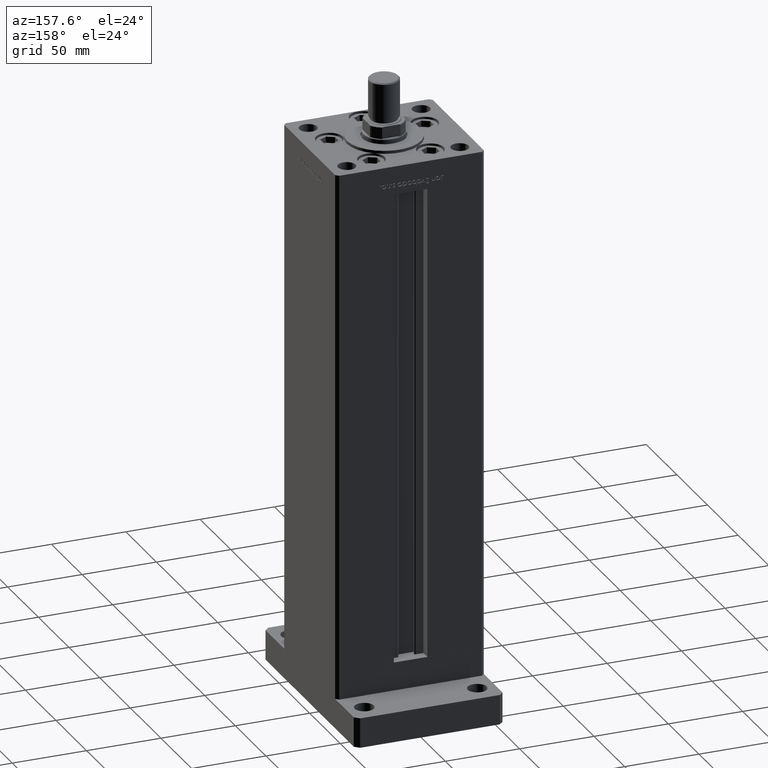
[diagram: clean part render]
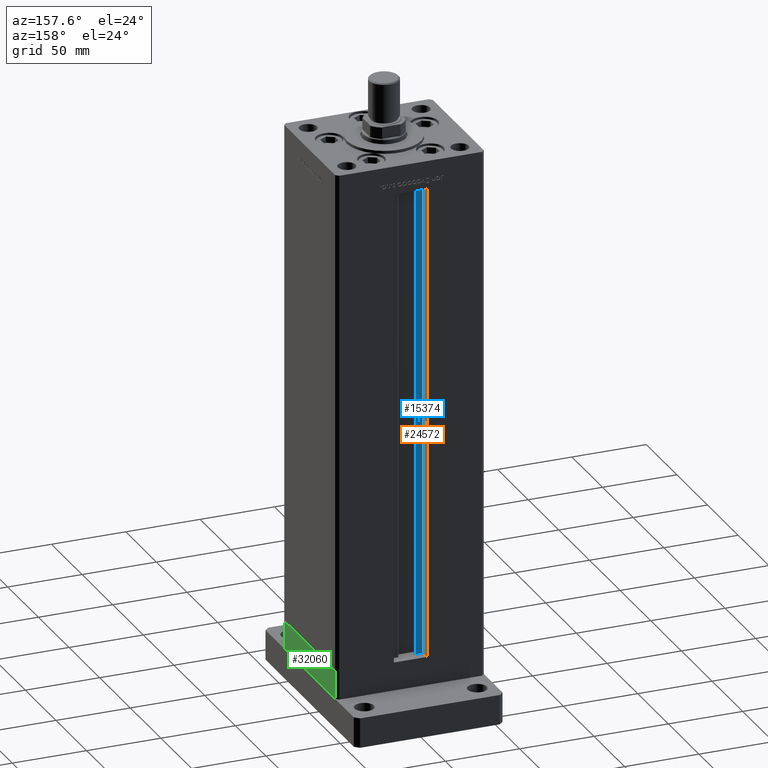
[diagram: same view with three faces highlighted in distinct colors, each labeled with its STEP entity id]
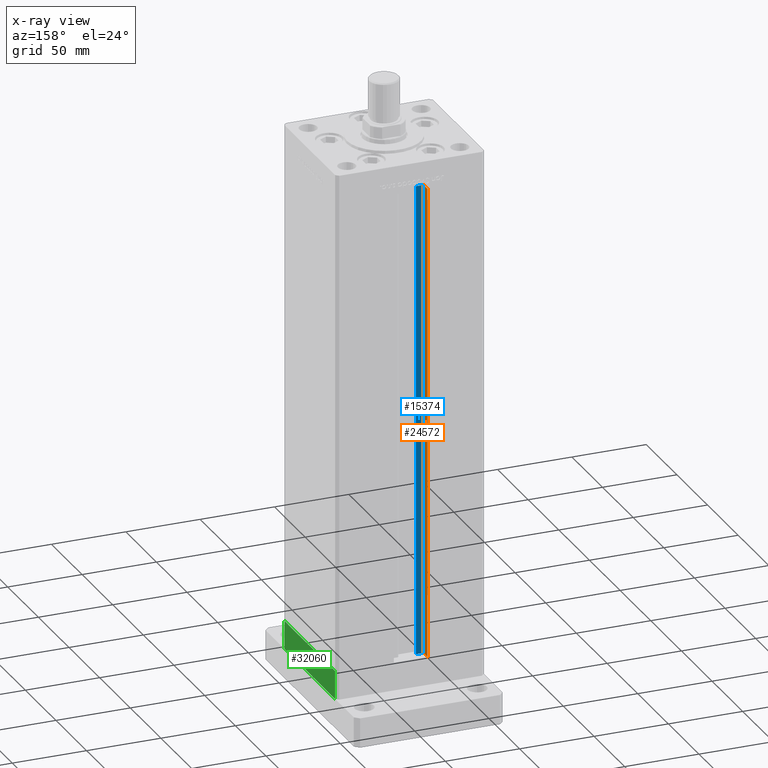
[diagram: x-ray of the same camera — body ghosted, the three highlighted faces saturated]
A machine part, auxiliary view with three faces highlighted in distinct colors.
The next image is the same camera in x-ray (body ghosted, the three faces saturated) — at least one of them is partly hidden behind the body in this view.
Their STEP definitions:

[orange] entity #24572 — the highlighted planar face has unit normal (-1, 0, 0).
#1047 = LINE ( 'NONE', #51153, #19085 ) ;
#1165 = VERTEX_POINT ( 'NONE', #39199 ) ;
#1430 = DIRECTION ( 'NONE',  ( 0.000000000000000000, 1.000000000000000000, 0.000000000000000000 ) ) ;
#2172 = EDGE_CURVE ( 'NONE', #21107, #40958, #1047, .T. ) ;
#2620 = DIRECTION ( 'NONE',  ( -1.000000000000000000, 0.000000000000000000, 0.000000000000000000 ) ) ;
#2978 = ORIENTED_EDGE ( 'NONE', *, *, #19882, .F. ) ;
#3798 = DIRECTION ( 'NONE',  ( -0.000000000000000000, -0.000000000000000000, 1.000000000000000000 ) ) ;
#7537 = VECTOR ( 'NONE', #3798, 1000.000000000000000 ) ;
#9757 = FACE_OUTER_BOUND ( 'NONE', #17775, .T. ) ;
#9919 = LINE ( 'NONE', #13196, #27832 ) ;
#11702 = CARTESIAN_POINT ( 'NONE',  ( -11.24999999999999822, 36.99999999999999289, 0.000000000000000000 ) ) ;
#13196 = CARTESIAN_POINT ( 'NONE',  ( -11.24999999999999822, 0.000000000000000000, 318.5000000000000000 ) ) ;
#15525 = LINE ( 'NONE', #11702, #42757 ) ;
#17775 = EDGE_LOOP ( 'NONE', ( #47777, #49898, #42741, #2978 ) ) ;
#19085 = VECTOR ( 'NONE', #38256, 1000.000000000000000 ) ;
#19300 = DIRECTION ( 'NONE',  ( 0.000000000000000000, 0.000000000000000000, 1.000000000000000000 ) ) ;
#19882 = EDGE_CURVE ( 'NONE', #43770, #1165, #9919, .T. ) ;
#21063 = EDGE_CURVE ( 'NONE', #40958, #43770, #15525, .T. ) ;
#21107 = VERTEX_POINT ( 'NONE', #40181 ) ;
#24572 = ADVANCED_FACE ( 'NONE', ( #9757 ), #44509, .F. ) ;
#27832 = VECTOR ( 'NONE', #1430, 1000.000000000000000 ) ;
#33996 = CARTESIAN_POINT ( 'NONE',  ( -11.24999999999999822, 36.99999999999999289, 318.5000000000000000 ) ) ;
#36692 = AXIS2_PLACEMENT_3D ( 'NONE', #39587, #2620, #19300 ) ;
#38256 = DIRECTION ( 'NONE',  ( -0.000000000000000000, -1.000000000000000000, -0.000000000000000000 ) ) ;
#39199 = CARTESIAN_POINT ( 'NONE',  ( -11.24999999999999822, 43.50000000000000000, 318.5000000000000000 ) ) ;
#39587 = CARTESIAN_POINT ( 'NONE',  ( -11.24999999999999822, 36.99999999999999289, 0.000000000000000000 ) ) ;
#40181 = CARTESIAN_POINT ( 'NONE',  ( -11.24999999999999822, 43.50000000000000000, 0.000000000000000000 ) ) ;
#40958 = VERTEX_POINT ( 'NONE', #43536 ) ;
#41833 = CARTESIAN_POINT ( 'NONE',  ( -11.24999999999999822, 43.50000000000000000, 0.000000000000000000 ) ) ;
#42098 = LINE ( 'NONE', #41833, #7537 ) ;
#42741 = ORIENTED_EDGE ( 'NONE', *, *, #45019, .T. ) ;
#42757 = VECTOR ( 'NONE', #53868, 1000.000000000000000 ) ;
#43536 = CARTESIAN_POINT ( 'NONE',  ( -11.24999999999999822, 36.99999999999999289, 0.000000000000000000 ) ) ;
#43770 = VERTEX_POINT ( 'NONE', #33996 ) ;
#44509 = PLANE ( 'NONE',  #36692 ) ;
#45019 = EDGE_CURVE ( 'NONE', #21107, #1165, #42098, .T. ) ;
#47777 = ORIENTED_EDGE ( 'NONE', *, *, #21063, .F. ) ;
#49898 = ORIENTED_EDGE ( 'NONE', *, *, #2172, .F. ) ;
#51153 = CARTESIAN_POINT ( 'NONE',  ( -11.24999999999999822, 36.99999999999999289, 0.000000000000000000 ) ) ;
#53868 = DIRECTION ( 'NONE',  ( -0.000000000000000000, -0.000000000000000000, 1.000000000000000000 ) ) ;

[blue] entity #15374 — the highlighted planar face has unit normal (0, -1, 0).
#3329 = VECTOR ( 'NONE', #11718, 1000.000000000000000 ) ;
#4165 = ORIENTED_EDGE ( 'NONE', *, *, #43851, .F. ) ;
#6069 = LINE ( 'NONE', #26041, #40720 ) ;
#11702 = CARTESIAN_POINT ( 'NONE',  ( -11.24999999999999822, 36.99999999999999289, 0.000000000000000000 ) ) ;
#11718 = DIRECTION ( 'NONE',  ( 1.000000000000000000, -0.000000000000000000, -0.000000000000000000 ) ) ;
#12994 = FACE_OUTER_BOUND ( 'NONE', #37961, .T. ) ;
#15151 = VERTEX_POINT ( 'NONE', #34405 ) ;
#15374 = ADVANCED_FACE ( 'NONE', ( #12994 ), #29698, .F. ) ;
#15525 = LINE ( 'NONE', #11702, #42757 ) ;
#17321 = DIRECTION ( 'NONE',  ( -1.000000000000000000, 0.000000000000000000, 0.000000000000000000 ) ) ;
#17358 = CARTESIAN_POINT ( 'NONE',  ( -6.183333333333997928, 36.99999999999999289, 0.000000000000000000 ) ) ;
#18456 = ORIENTED_EDGE ( 'NONE', *, *, #19514, .F. ) ;
#19514 = EDGE_CURVE ( 'NONE', #40958, #48884, #49246, .T. ) ;
#21063 = EDGE_CURVE ( 'NONE', #40958, #43770, #15525, .T. ) ;
#24476 = CARTESIAN_POINT ( 'NONE',  ( 0.000000000000000000, 36.99999999999999289, 318.5000000000000000 ) ) ;
#25585 = DIRECTION ( 'NONE',  ( 0.000000000000000000, -1.000000000000000000, -0.000000000000000000 ) ) ;
#26041 = CARTESIAN_POINT ( 'NONE',  ( -6.183333333333997928, 36.99999999999999289, 0.000000000000000000 ) ) ;
#29698 = PLANE ( 'NONE',  #31613 ) ;
#30011 = VECTOR ( 'NONE', #17321, 1000.000000000000000 ) ;
#31613 = AXIS2_PLACEMENT_3D ( 'NONE', #17358, #25585, #46410 ) ;
#33059 = CARTESIAN_POINT ( 'NONE',  ( -6.183333333333997928, 36.99999999999999289, 0.000000000000000000 ) ) ;
#33262 = ORIENTED_EDGE ( 'NONE', *, *, #21063, .T. ) ;
#33996 = CARTESIAN_POINT ( 'NONE',  ( -11.24999999999999822, 36.99999999999999289, 318.5000000000000000 ) ) ;
#34405 = CARTESIAN_POINT ( 'NONE',  ( -6.183333333333997928, 36.99999999999999289, 318.5000000000000000 ) ) ;
#37366 = EDGE_CURVE ( 'NONE', #15151, #43770, #46108, .T. ) ;
#37961 = EDGE_LOOP ( 'NONE', ( #4165, #18456, #33262, #44940 ) ) ;
#40720 = VECTOR ( 'NONE', #47139, 1000.000000000000000 ) ;
#40958 = VERTEX_POINT ( 'NONE', #43536 ) ;
#42757 = VECTOR ( 'NONE', #53868, 1000.000000000000000 ) ;
#43536 = CARTESIAN_POINT ( 'NONE',  ( -11.24999999999999822, 36.99999999999999289, 0.000000000000000000 ) ) ;
#43770 = VERTEX_POINT ( 'NONE', #33996 ) ;
#43851 = EDGE_CURVE ( 'NONE', #48884, #15151, #6069, .T. ) ;
#44940 = ORIENTED_EDGE ( 'NONE', *, *, #37366, .F. ) ;
#46108 = LINE ( 'NONE', #24476, #30011 ) ;
#46410 = DIRECTION ( 'NONE',  ( 0.000000000000000000, 0.000000000000000000, -1.000000000000000000 ) ) ;
#47139 = DIRECTION ( 'NONE',  ( -0.000000000000000000, -0.000000000000000000, 1.000000000000000000 ) ) ;
#48639 = CARTESIAN_POINT ( 'NONE',  ( -6.183333333333997928, 36.99999999999999289, 0.000000000000000000 ) ) ;
#48884 = VERTEX_POINT ( 'NONE', #48639 ) ;
#49246 = LINE ( 'NONE', #33059, #3329 ) ;
#53868 = DIRECTION ( 'NONE',  ( -0.000000000000000000, -0.000000000000000000, 1.000000000000000000 ) ) ;

[green] entity #32060 — the highlighted planar face has unit normal (1, 0, 0).
#411 = VERTEX_POINT ( 'NONE', #46881 ) ;
#4141 = DIRECTION ( 'NONE',  ( 8.360113137237628665E-17, -1.000000000000000000, 0.000000000000000000 ) ) ;
#5354 = VECTOR ( 'NONE', #7784, 1000.000000000000000 ) ;
#6643 = LINE ( 'NONE', #50095, #36905 ) ;
#7784 = DIRECTION ( 'NONE',  ( 0.000000000000000000, 0.000000000000000000, 1.000000000000000000 ) ) ;
#7915 = EDGE_CURVE ( 'NONE', #44695, #411, #43362, .T. ) ;
#9176 = CARTESIAN_POINT ( 'NONE',  ( -50.00000000000000711, 41.49999999999995026, -19.00000000000000000 ) ) ;
#14132 = ORIENTED_EDGE ( 'NONE', *, *, #28482, .F. ) ;
#16108 = VERTEX_POINT ( 'NONE', #9176 ) ;
#16256 = CARTESIAN_POINT ( 'NONE',  ( -50.00000000000000711, 41.49999999999995026, -19.00000000000000000 ) ) ;
#18225 = CARTESIAN_POINT ( 'NONE',  ( -50.00000000000000711, 41.49999999999995026, -19.00000000000000000 ) ) ;
#21348 = EDGE_CURVE ( 'NONE', #16108, #44695, #39027, .T. ) ;
#23619 = VECTOR ( 'NONE', #30488, 1000.000000000000000 ) ;
#24199 = LINE ( 'NONE', #16256, #5354 ) ;
#25620 = AXIS2_PLACEMENT_3D ( 'NONE', #41657, #41920, #4141 ) ;
#26370 = CARTESIAN_POINT ( 'NONE',  ( -50.00000000000000000, -41.50000000000000000, -19.00000000000000000 ) ) ;
#28482 = EDGE_CURVE ( 'NONE', #16108, #36228, #24199, .T. ) ;
#30488 = DIRECTION ( 'NONE',  ( 0.000000000000000000, 0.000000000000000000, 1.000000000000000000 ) ) ;
#32060 = ADVANCED_FACE ( 'NONE', ( #41396 ), #38061, .T. ) ;
#32147 = CARTESIAN_POINT ( 'NONE',  ( -50.00000000000000711, 41.49999999999995026, 0.000000000000000000 ) ) ;
#32174 = DIRECTION ( 'NONE',  ( 8.360113137237628665E-17, -1.000000000000000000, 0.000000000000000000 ) ) ;
#33138 = VECTOR ( 'NONE', #32174, 1000.000000000000000 ) ;
#36228 = VERTEX_POINT ( 'NONE', #32147 ) ;
#36905 = VECTOR ( 'NONE', #41859, 1000.000000000000000 ) ;
#37046 = ORIENTED_EDGE ( 'NONE', *, *, #7915, .T. ) ;
#38061 = PLANE ( 'NONE',  #25620 ) ;
#39027 = LINE ( 'NONE', #18225, #33138 ) ;
#39422 = EDGE_LOOP ( 'NONE', ( #39618, #14132, #53310, #37046 ) ) ;
#39618 = ORIENTED_EDGE ( 'NONE', *, *, #52295, .F. ) ;
#41396 = FACE_OUTER_BOUND ( 'NONE', #39422, .T. ) ;
#41657 = CARTESIAN_POINT ( 'NONE',  ( -50.00000000000000711, 41.49999999999995026, -19.00000000000000000 ) ) ;
#41859 = DIRECTION ( 'NONE',  ( 8.360113137237628665E-17, -1.000000000000000000, 0.000000000000000000 ) ) ;
#41920 = DIRECTION ( 'NONE',  ( -1.000000000000000000, -8.360113137237628665E-17, 0.000000000000000000 ) ) ;
#43362 = LINE ( 'NONE', #26370, #23619 ) ;
#44139 = CARTESIAN_POINT ( 'NONE',  ( -50.00000000000000000, -41.50000000000000000, -19.00000000000000000 ) ) ;
#44695 = VERTEX_POINT ( 'NONE', #44139 ) ;
#46881 = CARTESIAN_POINT ( 'NONE',  ( -50.00000000000000000, -41.50000000000000000, 0.000000000000000000 ) ) ;
#50095 = CARTESIAN_POINT ( 'NONE',  ( -50.00000000000000711, 41.49999999999995026, 0.000000000000000000 ) ) ;
#52295 = EDGE_CURVE ( 'NONE', #36228, #411, #6643, .T. ) ;
#53310 = ORIENTED_EDGE ( 'NONE', *, *, #21348, .T. ) ;